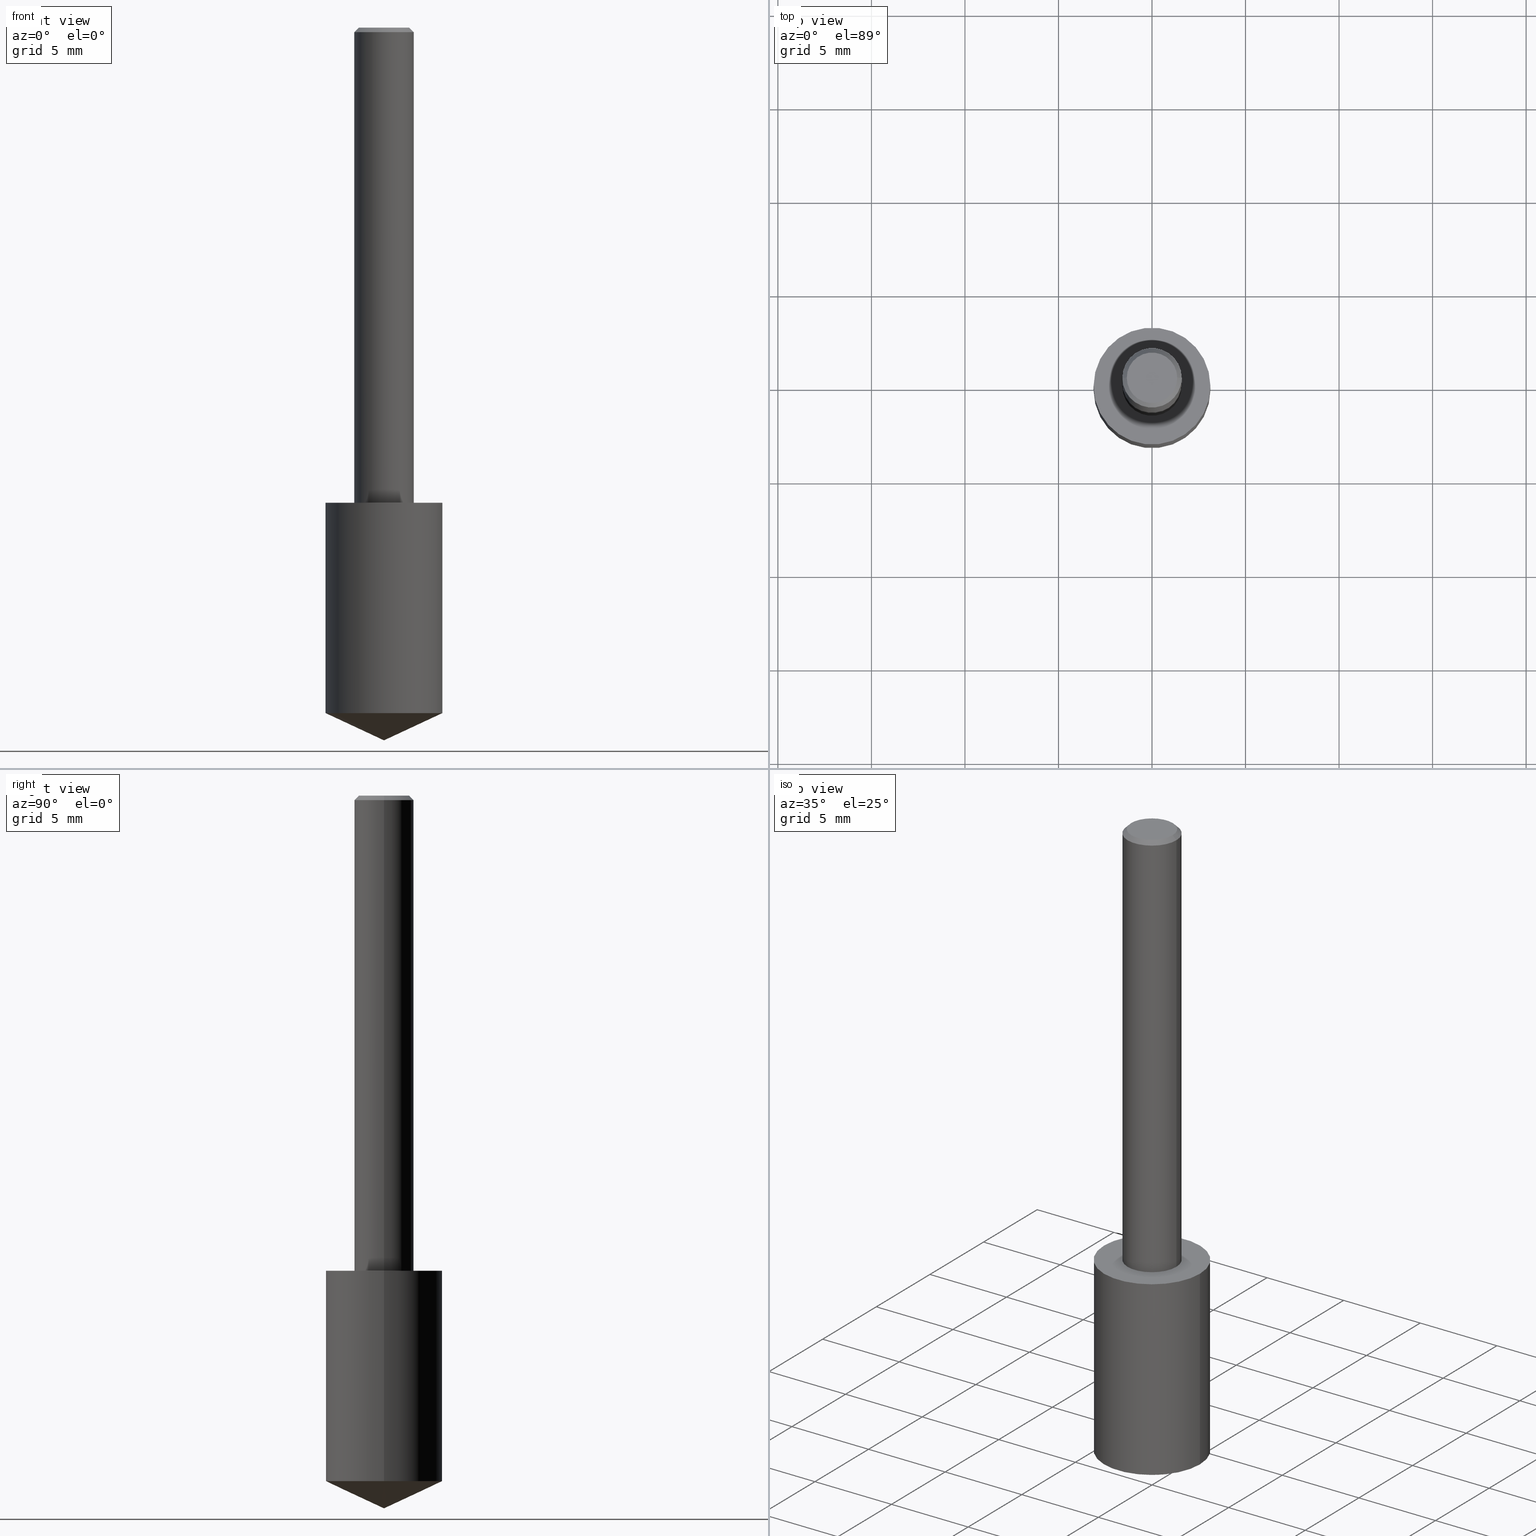
[diagram: canonical four-view strip — front | top / right | iso, engineering-drawing reading convention]
A machine part, canonical four-view strip (front | top / right | iso — engineering-drawing reading convention). The complete STEP part file that produces these views, byte-faithful:
ISO-10303-21;
HEADER;
FILE_DESCRIPTION (( 'STEP AP203' ),
    '1' );
FILE_NAME ('06170.STEP',
    '2024-04-30T18:32:46',
    ( '' ),
    ( '' ),
    'SwSTEP 2.0',
    'SolidWorks 2023',
    '' );
FILE_SCHEMA (( 'CONFIG_CONTROL_DESIGN' ));
ENDSEC;

DATA;
#1 = DIRECTION ( 'NONE',  ( -2.445468806185136597E-29, 3.491481338843145583E-15, 1.000000000000000000 ) ) ;
#2 = PERSON_AND_ORGANIZATION_ROLE ( 'design_supplier' ) ;
#3 = ORIENTED_EDGE ( 'NONE', *, *, #265, .F. ) ;
#4 = DIRECTION ( 'NONE',  ( -2.445468806185136877E-29, 3.491481338843145188E-15, 1.000000000000000000 ) ) ;
#5 = DIRECTION ( 'NONE',  ( -2.445468806185136597E-29, 3.491481338843145583E-15, 1.000000000000000000 ) ) ;
#6 = CIRCLE ( 'NONE', #133, 0.1229999999999999982 ) ;
#7 = ADVANCED_FACE ( 'NONE', ( #137 ), #115, .F. ) ;
#8 = DIRECTION ( 'NONE',  ( -2.445468806185136597E-29, 3.491481338843145583E-15, 1.000000000000000000 ) ) ;
#9 = LOCAL_TIME ( 14, 32, 46.00000000000000000, #333 ) ;
#10 = ADVANCED_FACE ( 'NONE', ( #53 ), #154, .T. ) ;
#11 = CALENDAR_DATE ( 2024, 30, 4 ) ;
#12 = ORIENTED_EDGE ( 'NONE', *, *, #197, .T. ) ;
#13 = COORDINATED_UNIVERSAL_TIME_OFFSET ( 5, 0, .BEHIND. ) ;
#14 = CIRCLE ( 'NONE', #108, 0.06250000000000000000 ) ;
#15 = DIRECTION ( 'NONE',  ( 1.000000000000000000, -6.982962677686265922E-15, 0.000000000000000000 ) ) ;
#16 = EDGE_CURVE ( 'NONE', #287, #232, #182, .T. ) ;
#17 = PERSON_AND_ORGANIZATION ( #23, #112 ) ;
#18 = ORIENTED_EDGE ( 'NONE', *, *, #140, .T. ) ;
#19 = LINE ( 'NONE', #120, #211 ) ;
#20 = EDGE_CURVE ( 'NONE', #287, #104, #234, .T. ) ;
#21 = DIRECTION ( 'NONE',  ( 2.445468806185136597E-29, -3.491481338843145583E-15, -1.000000000000000000 ) ) ;
#22 = APPROVAL_STATUS ( 'not_yet_approved' ) ;
#23 = PERSON ( 'UNSPECIFIED', 'UNSPECIFIED', 'UNSPECIFIED', ('UNSPECIFIED'), ('UNSPECIFIED'), ('UNSPECIFIED') ) ;
#24 = ORIENTED_EDGE ( 'NONE', *, *, #212, .T. ) ;
#25 = CARTESIAN_POINT ( 'NONE',  ( -7.487088864773345706E-50, 1.068957861474247695E-35, 3.061616997868395197E-21 ) ) ;
#26 = DIRECTION ( 'NONE',  ( 0.000000000000000000, 0.000000000000000000, 1.000000000000000000 ) ) ;
#27 = VERTEX_POINT ( 'NONE', #304 ) ;
#28 = VECTOR ( 'NONE', #51, 39.37007874015748143 ) ;
#29 = DIRECTION ( 'NONE',  ( -2.445468806185136597E-29, 3.491481338843145583E-15, 1.000000000000000000 ) ) ;
#30 = CARTESIAN_POINT ( 'NONE',  ( 2.445468806185137438E-29, -3.491481338843146371E-15, -1.000000000000000222 ) ) ;
#31 = DIRECTION ( 'NONE',  ( 1.000000000000000000, -6.982962677686266711E-15, 0.000000000000000000 ) ) ;
#32 = DIRECTION ( 'NONE',  ( 1.000000000000000000, -6.982962677686265922E-15, 0.000000000000000000 ) ) ;
#33 = LINE ( 'NONE', #322, #89 ) ;
#34 = PRODUCT_DEFINITION ( 'UNKNOWN', '', #122, #165 ) ;
#35 = CARTESIAN_POINT ( 'NONE',  ( -0.1229999999999999566, -4.162997591427033247E-15, -1.442644158046935354 ) ) ;
#36 = AXIS2_PLACEMENT_3D ( 'NONE', #30, #1, #81 ) ;
#37 = FACE_OUTER_BOUND ( 'NONE', #309, .T. ) ;
#38 = DATE_AND_TIME ( #11, #150 ) ;
#39 = AXIS2_PLACEMENT_3D ( 'NONE', #288, #337, #157 ) ;
#40 = CARTESIAN_POINT ( 'NONE',  ( -0.06250000000000012490, -1.318017778347335489E-15, -1.000000000000000222 ) ) ;
#41 = ORIENTED_EDGE ( 'NONE', *, *, #80, .F. ) ;
#42 = DATE_AND_TIME ( #139, #65 ) ;
#43 = AXIS2_PLACEMENT_3D ( 'NONE', #176, #290, #32 ) ;
#44 = EDGE_LOOP ( 'NONE', ( #321, #142, #24, #167 ) ) ;
#45 = APPROVAL_STATUS ( 'not_yet_approved' ) ;
#46 = COORDINATED_UNIVERSAL_TIME_OFFSET ( 5, 0, .BEHIND. ) ;
#47 = EDGE_LOOP ( 'NONE', ( #250, #84 ) ) ;
#48 = CC_DESIGN_PERSON_AND_ORGANIZATION_ASSIGNMENT ( #127, #2, ( #122 ) ) ;
#49 = VECTOR ( 'NONE', #302, 39.37007874015748143 ) ;
#50 = CONICAL_SURFACE ( 'NONE', #61, 0.06250000000000000000, 0.7853981633974450594 ) ;
#51 = DIRECTION ( 'NONE',  ( -0.9063077870366499367, 7.915267918739014631E-15, 0.4226182617406994413 ) ) ;
#52 = VERTEX_POINT ( 'NONE', #172 ) ;
#53 = FACE_OUTER_BOUND ( 'NONE', #253, .T. ) ;
#54 = CC_DESIGN_DATE_AND_TIME_ASSIGNMENT ( #276, #145, ( #34 ) ) ;
#55 = CC_DESIGN_APPROVAL ( #312, ( #34 ) ) ;
#56 = DIRECTION ( 'NONE',  ( -2.445468806185136597E-29, 3.491481338843145583E-15, 1.000000000000000000 ) ) ;
#57 = PLANE ( 'NONE',  #39 ) ;
#58 = ADVANCED_FACE ( 'NONE', ( #175 ), #138, .T. ) ;
#59 = LINE ( 'NONE', #159, #233 ) ;
#60 = FACE_OUTER_BOUND ( 'NONE', #316, .T. ) ;
#61 = AXIS2_PLACEMENT_3D ( 'NONE', #328, #21, #195 ) ;
#62 = EDGE_CURVE ( 'NONE', #82, #104, #19, .T. ) ;
#63 = APPLICATION_CONTEXT ( 'configuration controlled 3d designs of mechanical parts and assemblies' ) ;
#64 = DIRECTION ( 'NONE',  ( -2.445468806185136597E-29, 3.491481338843145583E-15, 1.000000000000000000 ) ) ;
#65 = LOCAL_TIME ( 14, 32, 46.00000000000000000, #196 ) ;
#66 = CARTESIAN_POINT ( 'NONE',  ( 2.445468806185136877E-29, -3.491481338843145977E-15, -1.000000000000000222 ) ) ;
#67 = ORIENTED_EDGE ( 'NONE', *, *, #262, .F. ) ;
#68 = CIRCLE ( 'NONE', #160, 0.06250000000000012490 ) ;
#69 = PERSON_AND_ORGANIZATION ( #23, #112 ) ;
#70 = DIRECTION ( 'NONE',  ( -2.445468806185136597E-29, 3.491481338843145583E-15, 1.000000000000000000 ) ) ;
#71 = DIRECTION ( 'NONE',  ( -0.7071067811865452413, 2.468850131082233000E-15, -0.7071067811865497932 ) ) ;
#72 = APPLICATION_PROTOCOL_DEFINITION ( 'international standard', 'config_control_design', 1994, #63 ) ;
#73 = ORIENTED_EDGE ( 'NONE', *, *, #20, .T. ) ;
#74 = APPROVAL_ROLE ( '' ) ;
#75 = VERTEX_POINT ( 'NONE', #163 ) ;
#76 =( LENGTH_UNIT ( ) NAMED_UNIT ( * ) SI_UNIT ( $, .METRE. ) );
#77 = DIRECTION ( 'NONE',  ( 1.000000000000000000, -6.982962677686266711E-15, 4.876176628004948512E-29 ) ) ;
#78 = VECTOR ( 'NONE', #190, 39.37007874015748143 ) ;
#79 = LINE ( 'NONE', #285, #28 ) ;
#80 = EDGE_CURVE ( 'NONE', #119, #82, #68, .T. ) ;
#81 = DIRECTION ( 'NONE',  ( 1.000000000000000000, -6.982962677686264344E-15, 0.000000000000000000 ) ) ;
#82 = VERTEX_POINT ( 'NONE', #40 ) ;
#83 = DIRECTION ( 'NONE',  ( -2.445468806185136597E-29, 3.491481338843145583E-15, 1.000000000000000000 ) ) ;
#84 = ORIENTED_EDGE ( 'NONE', *, *, #240, .T. ) ;
#85 = FACE_OUTER_BOUND ( 'NONE', #311, .T. ) ;
#86 = EDGE_CURVE ( 'NONE', #104, #27, #14, .T. ) ;
#87 =( NAMED_UNIT ( * ) PLANE_ANGLE_UNIT ( ) SI_UNIT ( $, .RADIAN. ) );
#88 = DIRECTION ( 'NONE',  ( 1.000000000000000000, -6.982962677686264344E-15, 0.000000000000000000 ) ) ;
#89 = VECTOR ( 'NONE', #319, 39.37007874015748143 ) ;
#90 = CC_DESIGN_PERSON_AND_ORGANIZATION_ASSIGNMENT ( #69, #199, ( #34 ) ) ;
#91 = VECTOR ( 'NONE', #71, 39.37007874015748143 ) ;
#92 = ORIENTED_EDGE ( 'NONE', *, *, #226, .F. ) ;
#93 = EDGE_CURVE ( 'NONE', #52, #107, #33, .T. ) ;
#94 =( NAMED_UNIT ( * ) SI_UNIT ( $, .STERADIAN. ) SOLID_ANGLE_UNIT ( ) );
#95 = CALENDAR_DATE ( 2024, 30, 4 ) ;
#96 = LOCAL_TIME ( 14, 32, 46.00000000000000000, #124 ) ;
#97 = ORIENTED_EDGE ( 'NONE', *, *, #80, .T. ) ;
#98 = CARTESIAN_POINT ( 'NONE',  ( -9.261009624683002666E-28, 1.322226732217803884E-13, 37.87007874015748143 ) ) ;
#99 = ORIENTED_EDGE ( 'NONE', *, *, #192, .T. ) ;
#100 = DIRECTION ( 'NONE',  ( -2.445468806185136597E-29, 3.491481338843145583E-15, 1.000000000000000000 ) ) ;
#101 = APPROVAL_STATUS ( 'not_yet_approved' ) ;
#102 = EDGE_LOOP ( 'NONE', ( #180, #18, #3 ) ) ;
#103 = LENGTH_MEASURE_WITH_UNIT ( LENGTH_MEASURE( 0.02539999999999999897 ), #76 );
#104 = VERTEX_POINT ( 'NONE', #209 ) ;
#105 = ADVANCED_FACE ( 'NONE', ( #134 ), #148, .F. ) ;
#106 = FACE_OUTER_BOUND ( 'NONE', #174, .T. ) ;
#107 = VERTEX_POINT ( 'NONE', #314 ) ;
#108 = AXIS2_PLACEMENT_3D ( 'NONE', #256, #318, #31 ) ;
#110 = LINE ( 'NONE', #217, #78 ) ;
#109 = SECURITY_CLASSIFICATION ( '', '', #113 ) ;
#111 = CC_DESIGN_PERSON_AND_ORGANIZATION_ASSIGNMENT ( #218, #269, ( #109 ) ) ;
#112 = ORGANIZATION ( 'UNSPECIFIED', 'UNSPECIFIED', '' ) ;
#113 = SECURITY_CLASSIFICATION_LEVEL ( 'unclassified' ) ;
#114 = CC_DESIGN_SECURITY_CLASSIFICATION ( #109, ( #122 ) ) ;
#115 = PLANE ( 'NONE',  #330 ) ;
#116 = LINE ( 'NONE', #227, #49 ) ;
#117 = ORIENTED_EDGE ( 'NONE', *, *, #86, .T. ) ;
#118 = DATE_TIME_ROLE ( 'classification_date' ) ;
#119 = VERTEX_POINT ( 'NONE', #279 ) ;
#120 = CARTESIAN_POINT ( 'NONE',  ( -0.06250000000000006939, 4.440892098500631092E-16, -3.074334431409319267E-30 ) ) ;
#121 = AXIS2_PLACEMENT_3D ( 'NONE', #286, #26, #125 ) ;
#122 = PRODUCT_DEFINITION_FORMATION_WITH_SPECIFIED_SOURCE ( 'ANY', '', #313, .NOT_KNOWN. ) ;
#123 = DIRECTION ( 'NONE',  ( 2.438088387897960049E-29, -3.491481338843145188E-15, -1.000000000000000000 ) ) ;
#124 = COORDINATED_UNIVERSAL_TIME_OFFSET ( 5, 0, .BEHIND. ) ;
#125 = DIRECTION ( 'NONE',  ( 1.000000000000000000, 0.000000000000000000, 0.000000000000000000 ) ) ;
#126 = MANIFOLD_SOLID_BREP ( 'Body-Move/Copy2[2]', #260 ) ;
#127 = PERSON_AND_ORGANIZATION ( #23, #112 ) ;
#128 = ORIENTED_EDGE ( 'NONE', *, *, #262, .T. ) ;
#129 = AXIS2_PLACEMENT_3D ( 'NONE', #185, #181, #264 ) ;
#130 = CC_DESIGN_APPROVAL ( #249, ( #122 ) ) ;
#131 = EDGE_LOOP ( 'NONE', ( #206, #99 ) ) ;
#132 = DIRECTION ( 'NONE',  ( -2.445468806185136597E-29, 3.491481338843145583E-15, 1.000000000000000000 ) ) ;
#133 = AXIS2_PLACEMENT_3D ( 'NONE', #66, #251, #15 ) ;
#134 = FACE_OUTER_BOUND ( 'NONE', #131, .T. ) ;
#135 = CC_DESIGN_PERSON_AND_ORGANIZATION_ASSIGNMENT ( #17, #231, ( #122 ) ) ;
#136 = MANIFOLD_SOLID_BREP ( 'Body-Move/Copy2[1]', #246 ) ;
#137 = FACE_OUTER_BOUND ( 'NONE', #47, .T. ) ;
#138 = CONICAL_SURFACE ( 'NONE', #244, 84.42940631927396566, 1.134464013796314230 ) ;
#139 = CALENDAR_DATE ( 2024, 30, 4 ) ;
#140 = EDGE_CURVE ( 'NONE', #52, #198, #79, .T. ) ;
#141 = EDGE_LOOP ( 'NONE', ( #41, #171 ) ) ;
#142 = ORIENTED_EDGE ( 'NONE', *, *, #297, .T. ) ;
#143 = ADVANCED_FACE ( 'NONE', ( #153 ), #261, .T. ) ;
#144 = DIMENSIONAL_EXPONENTS ( 1.000000000000000000, 0.000000000000000000, 0.000000000000000000, 0.000000000000000000, 0.000000000000000000, 0.000000000000000000, 0.000000000000000000 ) ;
#145 = DATE_TIME_ROLE ( 'creation_date' ) ;
#146 = DIRECTION ( 'NONE',  ( 1.000000000000000000, -6.982962677686269866E-15, 0.000000000000000000 ) ) ;
#147 = DIRECTION ( 'NONE',  ( -2.445468806185136597E-29, 3.491481338843145583E-15, 1.000000000000000000 ) ) ;
#148 = PLANE ( 'NONE',  #223 ) ;
#149 = CONICAL_SURFACE ( 'NONE', #270, 84.42940631927396566, 1.134464013796314230 ) ;
#150 = LOCAL_TIME ( 14, 32, 46.00000000000000000, #13 ) ;
#151 = PERSON_AND_ORGANIZATION ( #23, #112 ) ;
#152 = ORIENTED_EDGE ( 'NONE', *, *, #62, .T. ) ;
#153 = FACE_OUTER_BOUND ( 'NONE', #255, .T. ) ;
#154 = CYLINDRICAL_SURFACE ( 'NONE', #293, 0.06250000000000006939 ) ;
#155 = APPROVAL_PERSON_ORGANIZATION ( #305, #312, #177 ) ;
#156 = CYLINDRICAL_SURFACE ( 'NONE', #267, 0.06250000000000006939 ) ;
#157 = DIRECTION ( 'NONE',  ( 1.000000000000000000, -6.982962677686265922E-15, 4.876176775795935793E-29 ) ) ;
#158 = LINE ( 'NONE', #241, #283 ) ;
#159 = CARTESIAN_POINT ( 'NONE',  ( -0.1229999999999999982, -2.617513773858223550E-15, -1.000000000000000222 ) ) ;
#160 = AXIS2_PLACEMENT_3D ( 'NONE', #272, #8, #88 ) ;
#161 = CARTESIAN_POINT ( 'NONE',  ( 2.445468806185137438E-29, -3.491481338843146371E-15, -1.000000000000000222 ) ) ;
#162 = DIRECTION ( 'NONE',  ( 1.000000000000000000, -6.982962677686265922E-15, 0.000000000000000000 ) ) ;
#163 = CARTESIAN_POINT ( 'NONE',  ( -0.1229999999999999982, -3.390255682642628004E-15, -1.000000000000000222 ) ) ;
#164 = ADVANCED_FACE ( 'NONE', ( #37 ), #50, .T. ) ;
#165 = DESIGN_CONTEXT ( 'detailed design', #63, 'design' ) ;
#166 = APPROVAL_PERSON_ORGANIZATION ( #229, #170, #298 ) ;
#167 = ORIENTED_EDGE ( 'NONE', *, *, #192, .F. ) ;
#168 = ORIENTED_EDGE ( 'NONE', *, *, #212, .F. ) ;
#169 = ORIENTED_EDGE ( 'NONE', *, *, #86, .F. ) ;
#170 = APPROVAL ( #45, 'UNSPECIFIED' ) ;
#171 = ORIENTED_EDGE ( 'NONE', *, *, #268, .F. ) ;
#172 = CARTESIAN_POINT ( 'NONE',  ( 3.668203209277704895E-29, -5.237222008264718177E-15, -1.500000000000000222 ) ) ;
#173 = PERSON_AND_ORGANIZATION ( #23, #112 ) ;
#174 = EDGE_LOOP ( 'NONE', ( #97, #152, #67, #92 ) ) ;
#175 = FACE_OUTER_BOUND ( 'NONE', #102, .T. ) ;
#176 = CARTESIAN_POINT ( 'NONE',  ( 2.445468806185136877E-29, -3.491481338843145977E-15, -1.000000000000000222 ) ) ;
#177 = APPROVAL_ROLE ( '' ) ;
#178 = ADVANCED_FACE ( 'NONE', ( #60 ), #149, .T. ) ;
#179 = DATE_AND_TIME ( #254, #320 ) ;
#180 = ORIENTED_EDGE ( 'NONE', *, *, #93, .F. ) ;
#181 = DIRECTION ( 'NONE',  ( 2.445468806185136597E-29, -3.491481338843145583E-15, -1.000000000000000000 ) ) ;
#182 = CIRCLE ( 'NONE', #237, 0.05312499999999999861 ) ;
#183 = APPROVAL_PERSON_ORGANIZATION ( #173, #249, #74 ) ;
#184 = DIRECTION ( 'NONE',  ( 1.000000000000000000, -6.982962677686269866E-15, 0.000000000000000000 ) ) ;
#185 = CARTESIAN_POINT ( 'NONE',  ( 2.292627005798581499E-31, -3.273263755165471417E-17, -0.009375000000000063838 ) ) ;
#186 = ORIENTED_EDGE ( 'NONE', *, *, #197, .F. ) ;
#187 = CARTESIAN_POINT ( 'NONE',  ( 2.445468806185137438E-29, -3.491481338843146371E-15, -1.000000000000000222 ) ) ;
#188 = AXIS2_PLACEMENT_3D ( 'NONE', #213, #100, #184 ) ;
#189 = FACE_OUTER_BOUND ( 'NONE', #44, .T. ) ;
#190 = DIRECTION ( 'NONE',  ( -2.445468806185136877E-29, 3.491481338843145188E-15, 1.000000000000000000 ) ) ;
#191 = CARTESIAN_POINT ( 'NONE',  ( -3.743544432386672853E-50, 5.344789307371238476E-36, 1.530808498934197599E-21 ) ) ;
#192 = EDGE_CURVE ( 'NONE', #75, #331, #6, .T. ) ;
#193 = PRODUCT_DEFINITION_SHAPE ( 'NONE', 'NONE',  #34 ) ;
#194 = CIRCLE ( 'NONE', #43, 0.1229999999999999982 ) ;
#195 = DIRECTION ( 'NONE',  ( -1.000000000000000000, 6.982962677686266711E-15, 0.000000000000000000 ) ) ;
#196 = COORDINATED_UNIVERSAL_TIME_OFFSET ( 5, 0, .BEHIND. ) ;
#197 = EDGE_CURVE ( 'NONE', #232, #27, #116, .T. ) ;
#198 = VERTEX_POINT ( 'NONE', #35 ) ;
#199 = PERSON_AND_ORGANIZATION_ROLE ( 'creator' ) ;
#200 = DIRECTION ( 'NONE',  ( -2.445468806185136597E-29, 3.491481338843145583E-15, 1.000000000000000000 ) ) ;
#201 = AXIS2_PLACEMENT_3D ( 'NONE', #308, #70, #146 ) ;
#202 = DIRECTION ( 'NONE',  ( -2.445468806185136877E-29, 3.491481338843145188E-15, 1.000000000000000000 ) ) ;
#203 = DIRECTION ( 'NONE',  ( -1.000000000000000000, 6.982962677686265922E-15, -4.876176775795935793E-29 ) ) ;
#204 = APPLICATION_CONTEXT ( 'configuration controlled 3d designs of mechanical parts and assemblies' ) ;
#205 = MECHANICAL_CONTEXT ( 'NONE', #204, 'mechanical' ) ;
#206 = ORIENTED_EDGE ( 'NONE', *, *, #236, .T. ) ;
#207 = CARTESIAN_POINT ( 'NONE',  ( 0.1229999999999999982, -4.350385748198556498E-15, -1.000000000000000222 ) ) ;
#208 = DIRECTION ( 'NONE',  ( 1.000000000000000000, -6.982962677686265922E-15, 0.000000000000000000 ) ) ;
#209 = CARTESIAN_POINT ( 'NONE',  ( -0.06250000000000000000, -1.318017778347336672E-15, -0.009375000000000063838 ) ) ;
#210 = DIRECTION ( 'NONE',  ( 1.000000000000000000, -6.982962677686265922E-15, 0.000000000000000000 ) ) ;
#211 = VECTOR ( 'NONE', #202, 39.37007874015748143 ) ;
#212 = EDGE_CURVE ( 'NONE', #107, #331, #158, .T. ) ;
#213 = CARTESIAN_POINT ( 'NONE',  ( 3.527941286929000820E-29, -5.036965156411956463E-15, -1.442644158046935354 ) ) ;
#214 = DIRECTION ( 'NONE',  ( -1.000000000000000000, 6.982962677686265922E-15, -4.876176775795935793E-29 ) ) ;
#215 = DIRECTION ( 'NONE',  ( 1.000000000000000000, -6.982962677686266711E-15, 4.876176775795935793E-29 ) ) ;
#216 = CIRCLE ( 'NONE', #252, 0.06250000000000000000 ) ;
#217 = CARTESIAN_POINT ( 'NONE',  ( 0.06250000000000006939, -4.364351673553921624E-16, 3.047610484872463374E-30 ) ) ;
#218 = PERSON_AND_ORGANIZATION ( #23, #112 ) ;
#219 = DIRECTION ( 'NONE',  ( 1.000000000000000000, -6.982962677686265922E-15, 0.000000000000000000 ) ) ;
#220 = CARTESIAN_POINT ( 'NONE',  ( -9.261009624683002666E-28, 1.322226732217803884E-13, 37.87007874015748143 ) ) ;
#221 = AXIS2_PLACEMENT_3D ( 'NONE', #242, #5, #77 ) ;
#222 = SHAPE_DEFINITION_REPRESENTATION ( #193, #280 ) ;
#223 = AXIS2_PLACEMENT_3D ( 'NONE', #257, #123, #203 ) ;
#224 = ORIENTED_EDGE ( 'NONE', *, *, #268, .T. ) ;
#225 = APPROVAL_DATE_TIME ( #42, #170 ) ;
#226 = EDGE_CURVE ( 'NONE', #119, #27, #110, .T. ) ;
#227 = CARTESIAN_POINT ( 'NONE',  ( 0.06250000000000000000, -4.615137624123754923E-16, -0.009375000000000063838 ) ) ;
#228 = DIRECTION ( 'NONE',  ( 1.000000000000000000, -6.982962677686266711E-15, 4.876176628004948512E-29 ) ) ;
#229 = PERSON_AND_ORGANIZATION ( #23, #112 ) ;
#230 = EDGE_CURVE ( 'NONE', #198, #75, #59, .T. ) ;
#231 = PERSON_AND_ORGANIZATION_ROLE ( 'creator' ) ;
#232 = VERTEX_POINT ( 'NONE', #245 ) ;
#233 = VECTOR ( 'NONE', #239, 39.37007874015748143 ) ;
#234 = LINE ( 'NONE', #332, #91 ) ;
#235 = CARTESIAN_POINT ( 'NONE',  ( 0.000000000000000000, 0.000000000000000000, 0.000000000000000000 ) ) ;
#236 = EDGE_CURVE ( 'NONE', #331, #75, #194, .T. ) ;
#237 = AXIS2_PLACEMENT_3D ( 'NONE', #25, #200, #228 ) ;
#238 = CARTESIAN_POINT ( 'NONE',  ( 0.000000000000000000, 0.000000000000000000, 0.000000000000000000 ) ) ;
#239 = DIRECTION ( 'NONE',  ( -2.445468806185136877E-29, 3.491481338843145188E-15, 1.000000000000000000 ) ) ;
#240 = EDGE_CURVE ( 'NONE', #232, #287, #327, .T. ) ;
#241 = CARTESIAN_POINT ( 'NONE',  ( 0.1229999999999999982, -4.350385748198557287E-15, -1.000000000000000222 ) ) ;
#242 = CARTESIAN_POINT ( 'NONE',  ( -7.487088864773345706E-50, 1.068957861474247695E-35, 3.061616997868395197E-21 ) ) ;
#243 = CIRCLE ( 'NONE', #36, 0.06250000000000012490 ) ;
#244 = AXIS2_PLACEMENT_3D ( 'NONE', #98, #147, #208 ) ;
#245 = CARTESIAN_POINT ( 'NONE',  ( 0.05312499999999999861, -4.129888592719939842E-16, 3.061617000609493422E-21 ) ) ;
#246 = CLOSED_SHELL ( 'NONE', ( #143, #58, #178, #299, #105 ) ) ;
#247 = CIRCLE ( 'NONE', #201, 0.1229999999999999982 ) ;
#248 = CARTESIAN_POINT ( 'NONE',  ( 2.292627005798581499E-31, -3.273263755165471417E-17, -0.009375000000000063838 ) ) ;
#249 = APPROVAL ( #22, 'UNSPECIFIED' ) ;
#250 = ORIENTED_EDGE ( 'NONE', *, *, #16, .T. ) ;
#251 = DIRECTION ( 'NONE',  ( -2.445468806185136597E-29, 3.491481338843145583E-15, 1.000000000000000000 ) ) ;
#252 = AXIS2_PLACEMENT_3D ( 'NONE', #248, #64, #266 ) ;
#253 = EDGE_LOOP ( 'NONE', ( #303, #224, #259, #169 ) ) ;
#254 = CALENDAR_DATE ( 2024, 30, 4 ) ;
#255 = EDGE_LOOP ( 'NONE', ( #289, #334, #281, #168 ) ) ;
#256 = CARTESIAN_POINT ( 'NONE',  ( 2.292627005798581499E-31, -3.273263755165471417E-17, -0.009375000000000063838 ) ) ;
#257 = CARTESIAN_POINT ( 'NONE',  ( 3.220931919228619559E-29, -2.380974024345478339E-15, -1.000000000000000222 ) ) ;
#258 = DATE_AND_TIME ( #95, #9 ) ;
#259 = ORIENTED_EDGE ( 'NONE', *, *, #226, .T. ) ;
#260 = CLOSED_SHELL ( 'NONE', ( #292, #284, #324, #10, #164, #7 ) ) ;
#261 = CYLINDRICAL_SURFACE ( 'NONE', #300, 0.1229999999999999982 ) ;
#262 = EDGE_CURVE ( 'NONE', #27, #104, #216, .T. ) ;
#263 = ORIENTED_EDGE ( 'NONE', *, *, #240, .F. ) ;
#264 = DIRECTION ( 'NONE',  ( -1.000000000000000000, 6.982962677686266711E-15, 0.000000000000000000 ) ) ;
#265 = EDGE_CURVE ( 'NONE', #107, #198, #247, .T. ) ;
#266 = DIRECTION ( 'NONE',  ( 1.000000000000000000, -6.982962677686266711E-15, 0.000000000000000000 ) ) ;
#267 = AXIS2_PLACEMENT_3D ( 'NONE', #235, #83, #215 ) ;
#268 = EDGE_CURVE ( 'NONE', #82, #119, #243, .T. ) ;
#269 = PERSON_AND_ORGANIZATION_ROLE ( 'classification_officer' ) ;
#270 = AXIS2_PLACEMENT_3D ( 'NONE', #220, #56, #219 ) ;
#271 = CC_DESIGN_PERSON_AND_ORGANIZATION_ASSIGNMENT ( #151, #336, ( #313 ) ) ;
#272 = CARTESIAN_POINT ( 'NONE',  ( 2.445468806185137438E-29, -3.491481338843146371E-15, -1.000000000000000222 ) ) ;
#273 = APPLICATION_PROTOCOL_DEFINITION ( 'international standard', 'config_control_design', 1994, #204 ) ;
#274 = ORIENTED_EDGE ( 'NONE', *, *, #20, .F. ) ;
#275 = ORIENTED_EDGE ( 'NONE', *, *, #93, .T. ) ;
#276 = DATE_AND_TIME ( #310, #96 ) ;
#277 = APPROVAL_DATE_TIME ( #258, #312 ) ;
#278 = ORIENTED_EDGE ( 'NONE', *, *, #16, .F. ) ;
#279 = CARTESIAN_POINT ( 'NONE',  ( 0.06250000000000012490, -3.927916506198539224E-15, -1.000000000000000222 ) ) ;
#280 = ADVANCED_BREP_SHAPE_REPRESENTATION ( '06170', ( #136, #126, #121 ), #339 ) ;
#281 = ORIENTED_EDGE ( 'NONE', *, *, #236, .F. ) ;
#282 = CARTESIAN_POINT ( 'NONE',  ( -0.05312499999999999861, 3.873362110279099094E-16, 3.061616995216862494E-21 ) ) ;
#283 = VECTOR ( 'NONE', #4, 39.37007874015748143 ) ;
#284 = ADVANCED_FACE ( 'NONE', ( #106 ), #156, .T. ) ;
#285 = CARTESIAN_POINT ( 'NONE',  ( 3.668203209277704895E-29, -5.237222008264718177E-15, -1.500000000000000222 ) ) ;
#286 = CARTESIAN_POINT ( 'NONE',  ( 0.000000000000000000, 0.000000000000000000, 0.000000000000000000 ) ) ;
#287 = VERTEX_POINT ( 'NONE', #282 ) ;
#288 = CARTESIAN_POINT ( 'NONE',  ( 2.445468806185137438E-29, -3.491481338843146371E-15, -1.000000000000000222 ) ) ;
#289 = ORIENTED_EDGE ( 'NONE', *, *, #265, .T. ) ;
#290 = DIRECTION ( 'NONE',  ( -2.445468806185136597E-29, 3.491481338843145583E-15, 1.000000000000000000 ) ) ;
#291 = DIRECTION ( 'NONE',  ( 2.438088387897960049E-29, -3.491481338843145188E-15, -1.000000000000000000 ) ) ;
#292 = ADVANCED_FACE ( 'NONE', ( #85 ), #306, .T. ) ;
#293 = AXIS2_PLACEMENT_3D ( 'NONE', #238, #29, #335 ) ;
#294 = ORIENTED_EDGE ( 'NONE', *, *, #140, .F. ) ;
#295 = FACE_OUTER_BOUND ( 'NONE', #141, .T. ) ;
#296 = AXIS2_PLACEMENT_3D ( 'NONE', #187, #132, #210 ) ;
#297 = EDGE_CURVE ( 'NONE', #198, #107, #326, .T. ) ;
#298 = APPROVAL_ROLE ( '' ) ;
#299 = ADVANCED_FACE ( 'NONE', ( #189 ), #317, .T. ) ;
#300 = AXIS2_PLACEMENT_3D ( 'NONE', #161, #325, #162 ) ;
#301 = CC_DESIGN_APPROVAL ( #170, ( #109 ) ) ;
#302 = DIRECTION ( 'NONE',  ( 0.7071067811865452413, -7.319954787623248157E-15, -0.7071067811865497932 ) ) ;
#303 = ORIENTED_EDGE ( 'NONE', *, *, #62, .F. ) ;
#304 = CARTESIAN_POINT ( 'NONE',  ( 0.06250000000000000000, -4.691678049070464390E-16, -0.009375000000000063838 ) ) ;
#305 = PERSON_AND_ORGANIZATION ( #23, #112 ) ;
#306 = CONICAL_SURFACE ( 'NONE', #129, 0.06250000000000000000, 0.7853981633974450594 ) ;
#307 = ORIENTED_EDGE ( 'NONE', *, *, #297, .F. ) ;
#308 = CARTESIAN_POINT ( 'NONE',  ( 3.527941286929000820E-29, -5.036965156411956463E-15, -1.442644158046935354 ) ) ;
#309 = EDGE_LOOP ( 'NONE', ( #186, #278, #73, #117 ) ) ;
#310 = CALENDAR_DATE ( 2024, 30, 4 ) ;
#311 = EDGE_LOOP ( 'NONE', ( #263, #12, #128, #274 ) ) ;
#312 = APPROVAL ( #101, 'UNSPECIFIED' ) ;
#313 = PRODUCT ( '06170', '06170', '', ( #205 ) ) ;
#314 = CARTESIAN_POINT ( 'NONE',  ( 0.1229999999999999566, -5.895869565767366984E-15, -1.442644158046935354 ) ) ;
#315 =( CONVERSION_BASED_UNIT ( 'INCH', #103 ) LENGTH_UNIT ( ) NAMED_UNIT ( #144 ) );
#316 = EDGE_LOOP ( 'NONE', ( #294, #275, #307 ) ) ;
#317 = CYLINDRICAL_SURFACE ( 'NONE', #296, 0.1229999999999999982 ) ;
#318 = DIRECTION ( 'NONE',  ( -2.445468806185136597E-29, 3.491481338843145583E-15, 1.000000000000000000 ) ) ;
#319 = DIRECTION ( 'NONE',  ( 0.9063077870366499367, -4.853149677051379579E-15, 0.4226182617406994413 ) ) ;
#320 = LOCAL_TIME ( 14, 32, 46.00000000000000000, #46 ) ;
#321 = ORIENTED_EDGE ( 'NONE', *, *, #230, .F. ) ;
#322 = CARTESIAN_POINT ( 'NONE',  ( 3.668203209277704895E-29, -5.237222008264718177E-15, -1.500000000000000222 ) ) ;
#323 = UNCERTAINTY_MEASURE_WITH_UNIT (LENGTH_MEASURE( 1.000000000000000082E-05 ), #315, 'distance_accuracy_value', 'NONE');
#324 = ADVANCED_FACE ( 'NONE', ( #295 ), #57, .F. ) ;
#325 = DIRECTION ( 'NONE',  ( -2.445468806185136597E-29, 3.491481338843145583E-15, 1.000000000000000000 ) ) ;
#326 = CIRCLE ( 'NONE', #188, 0.1229999999999999982 ) ;
#327 = CIRCLE ( 'NONE', #221, 0.05312499999999999861 ) ;
#328 = CARTESIAN_POINT ( 'NONE',  ( 2.292627005798581499E-31, -3.273263755165471417E-17, -0.009375000000000063838 ) ) ;
#329 = PRODUCT_RELATED_PRODUCT_CATEGORY ( 'detail', '', ( #313 ) ) ;
#330 = AXIS2_PLACEMENT_3D ( 'NONE', #191, #291, #214 ) ;
#331 = VERTEX_POINT ( 'NONE', #207 ) ;
#332 = CARTESIAN_POINT ( 'NONE',  ( -0.06250000000000000000, 4.037025298037369491E-16, -0.009375000000000063838 ) ) ;
#333 = COORDINATED_UNIVERSAL_TIME_OFFSET ( 5, 0, .BEHIND. ) ;
#334 = ORIENTED_EDGE ( 'NONE', *, *, #230, .T. ) ;
#335 = DIRECTION ( 'NONE',  ( 1.000000000000000000, -6.982962677686266711E-15, 4.876176775795935793E-29 ) ) ;
#336 = PERSON_AND_ORGANIZATION_ROLE ( 'design_owner' ) ;
#337 = DIRECTION ( 'NONE',  ( -2.438088387897960049E-29, 3.491481338843145188E-15, 1.000000000000000000 ) ) ;
#338 = APPROVAL_DATE_TIME ( #179, #249 ) ;
#339 =( GEOMETRIC_REPRESENTATION_CONTEXT ( 3 ) GLOBAL_UNCERTAINTY_ASSIGNED_CONTEXT ( ( #323 ) ) GLOBAL_UNIT_ASSIGNED_CONTEXT ( ( #315, #87, #94 ) ) REPRESENTATION_CONTEXT ( 'NONE', 'WORKASPACE' ) );
#340 = CC_DESIGN_DATE_AND_TIME_ASSIGNMENT ( #38, #118, ( #109 ) ) ;
ENDSEC;
END-ISO-10303-21;
